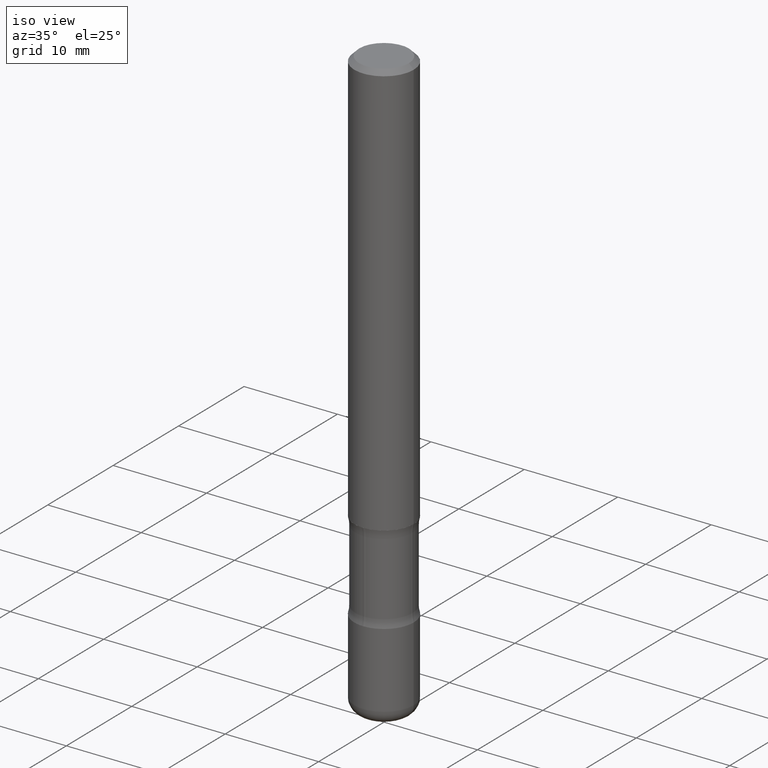
[diagram: clean part render]
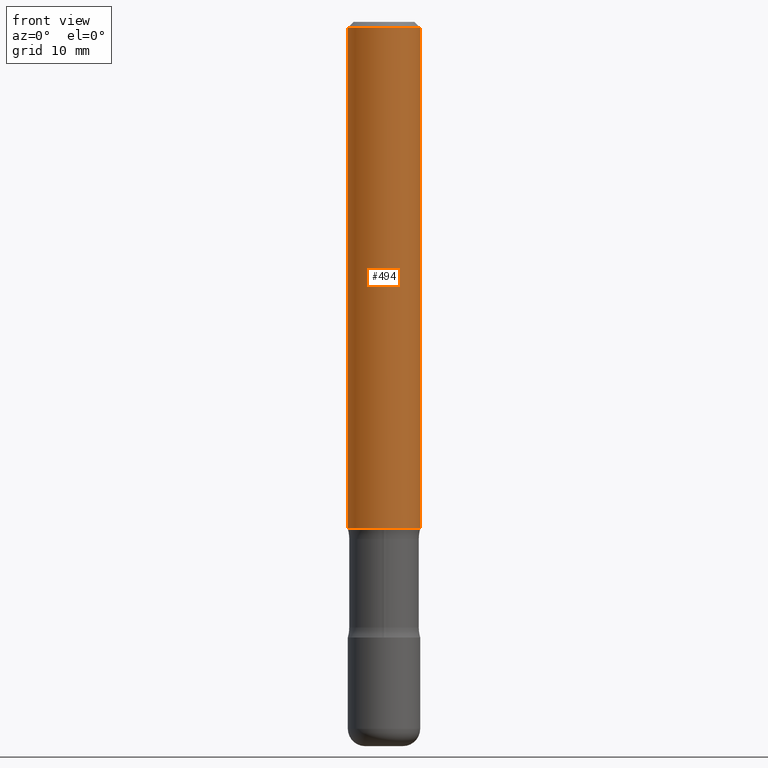
[diagram: tour spotlight — one face highlighted and labeled with its STEP entity id]
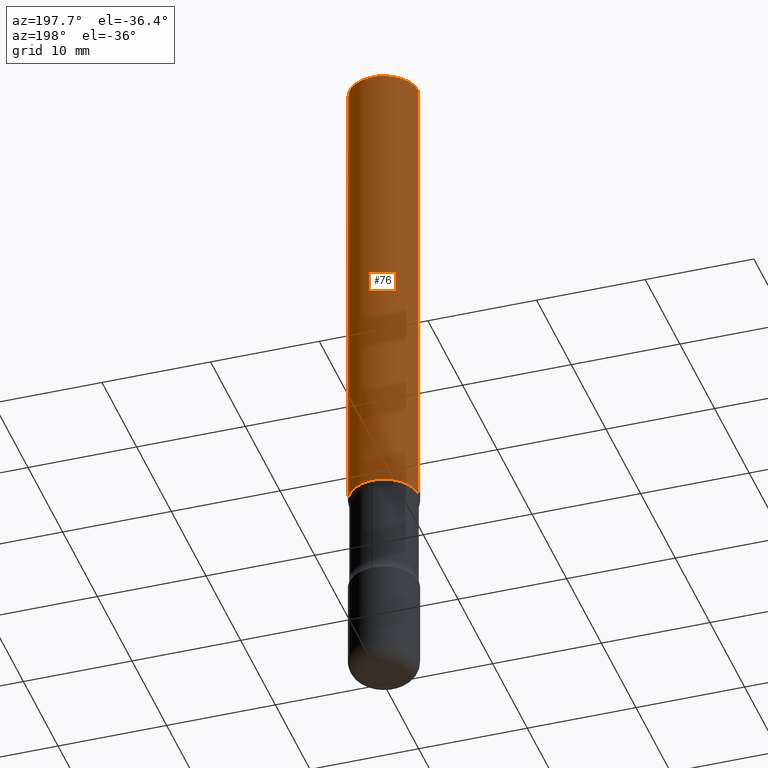
[diagram: tour spotlight — one face highlighted and labeled with its STEP entity id]
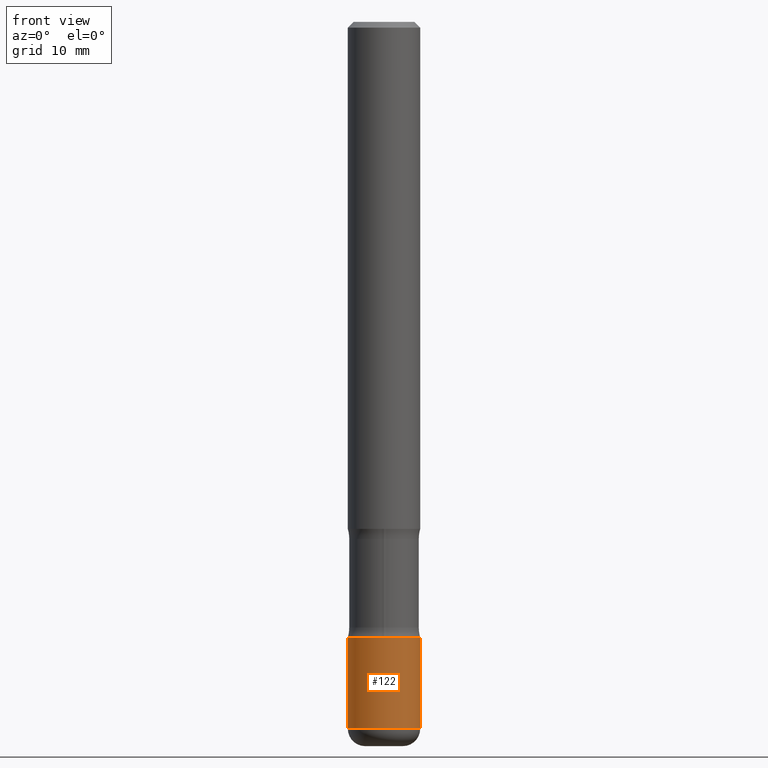
[diagram: tour spotlight — one face highlighted and labeled with its STEP entity id]
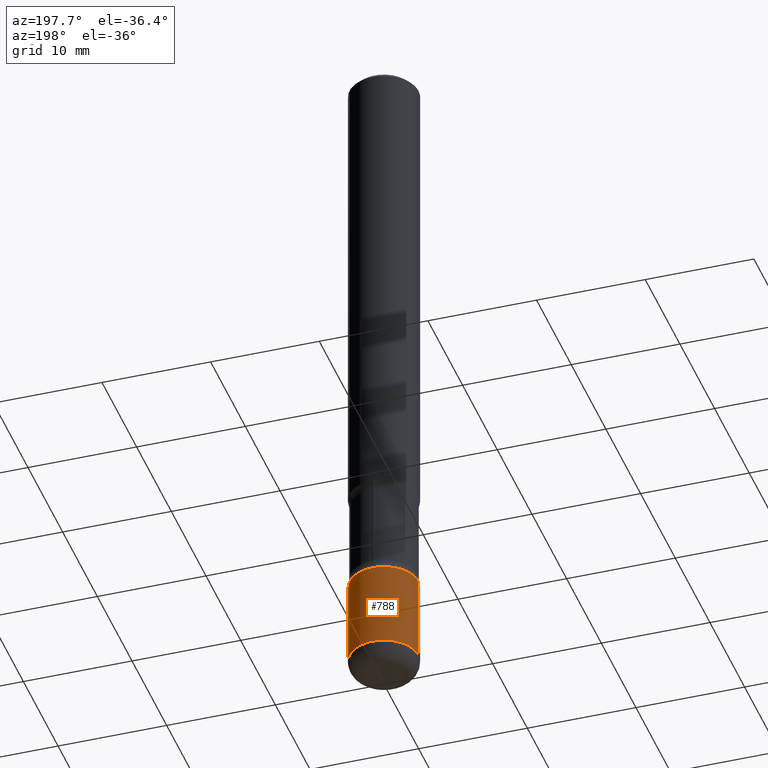
[diagram: tour spotlight — one face highlighted and labeled with its STEP entity id]
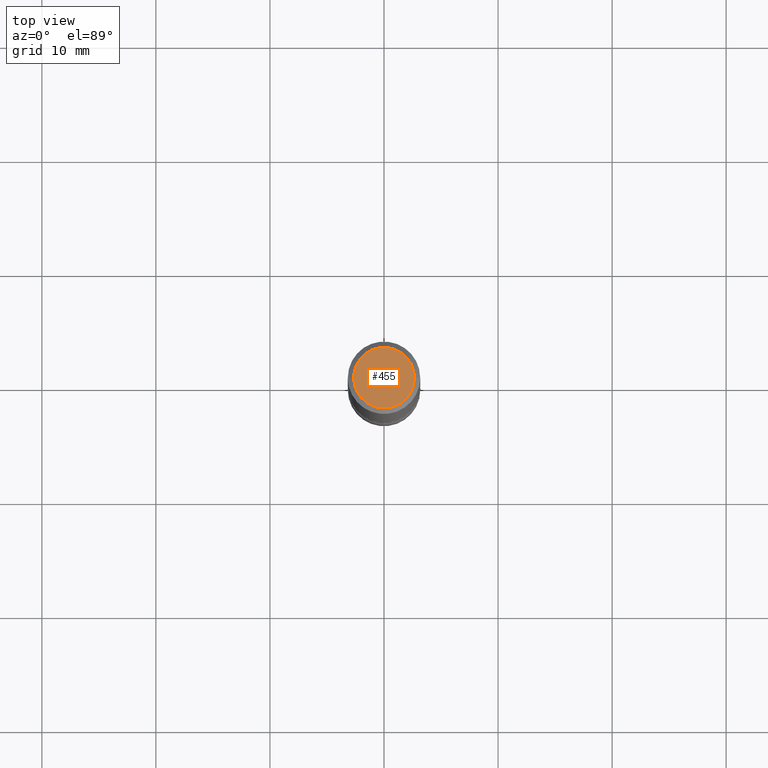
[diagram: tour spotlight — one face highlighted and labeled with its STEP entity id]
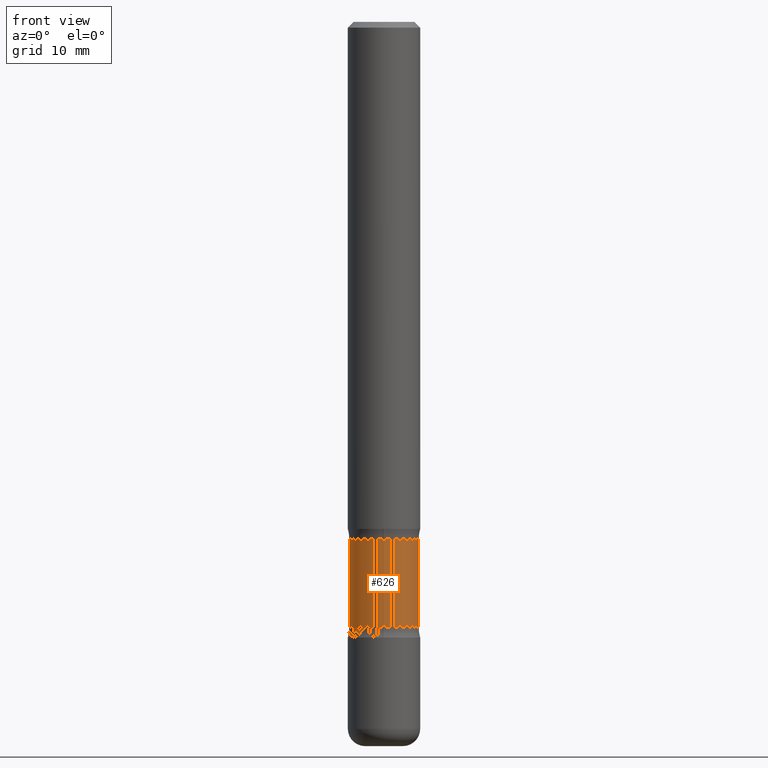
[diagram: tour spotlight — one face highlighted and labeled with its STEP entity id]
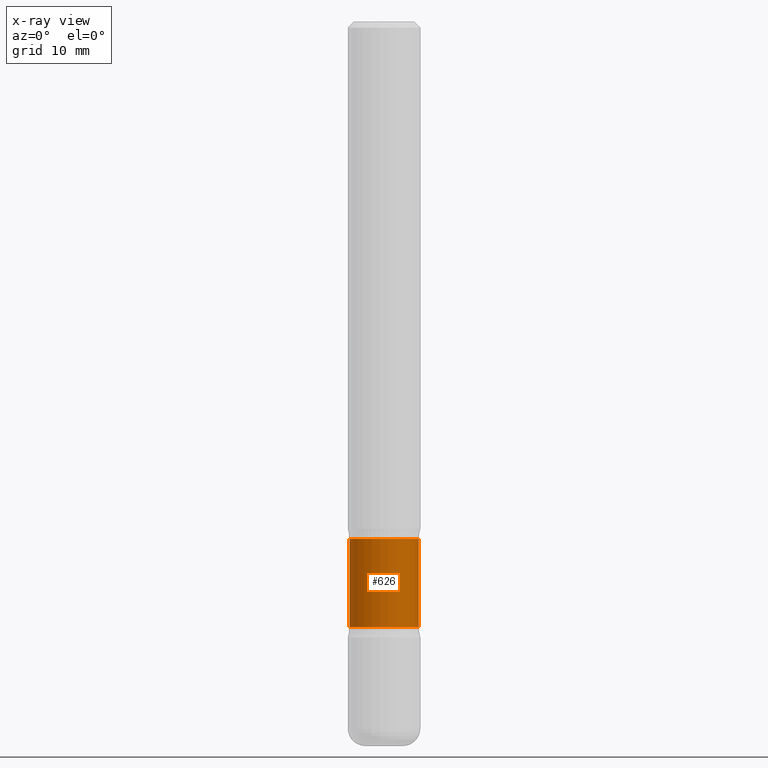
[diagram: x-ray of the same camera — body ghosted, this tour face saturated]
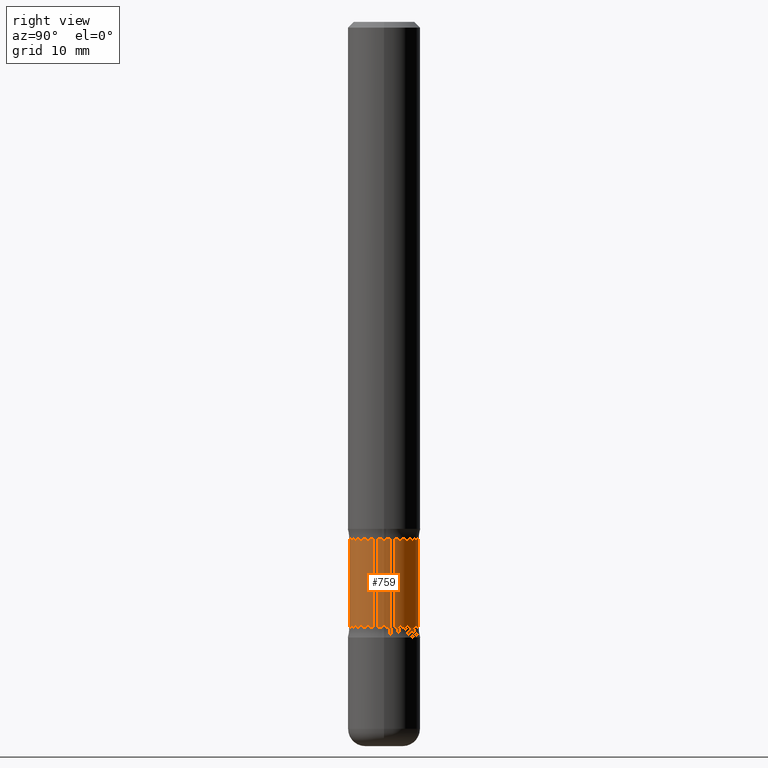
[diagram: tour spotlight — one face highlighted and labeled with its STEP entity id]
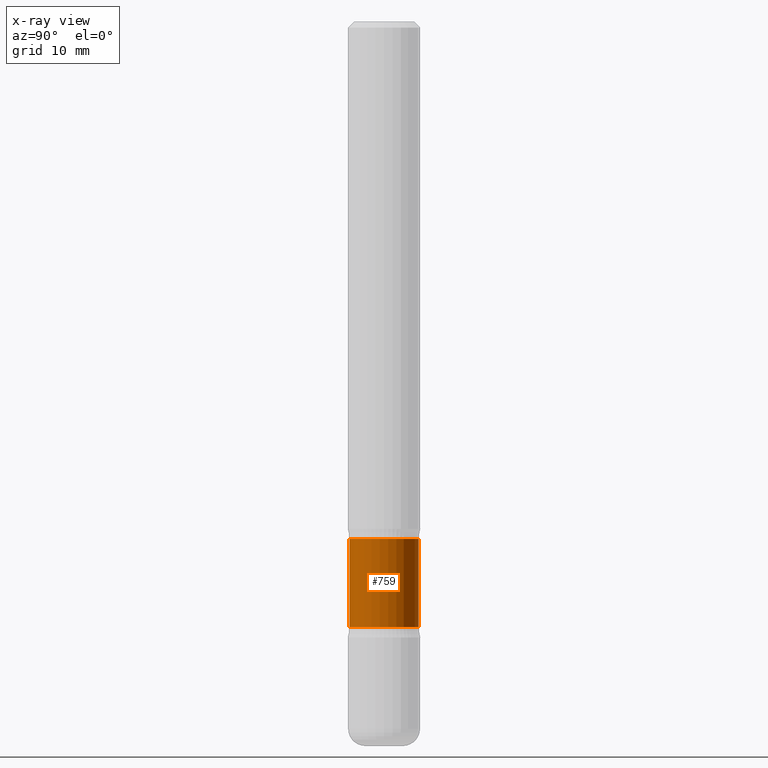
[diagram: x-ray of the same camera — body ghosted, this tour face saturated]
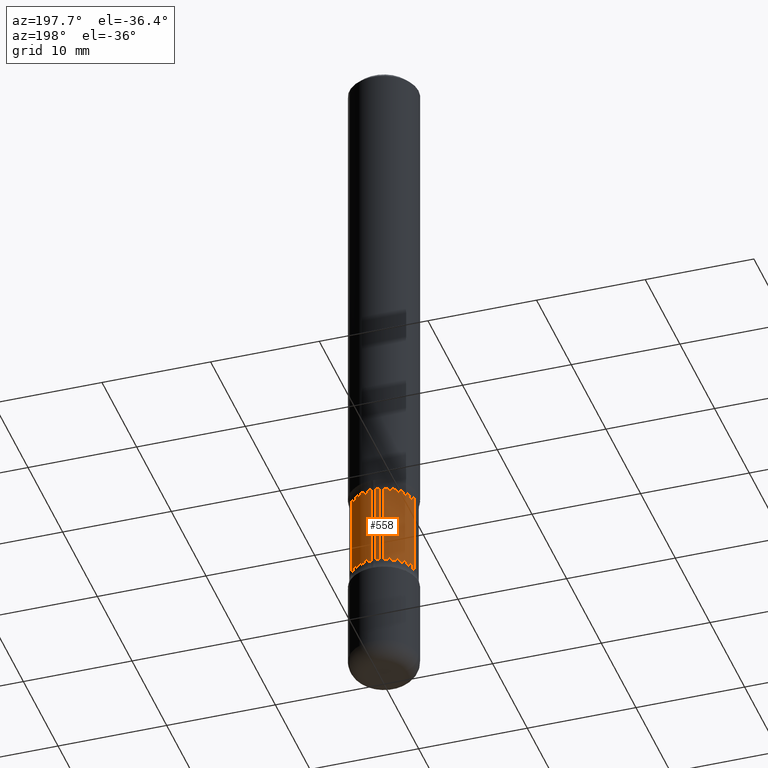
[diagram: tour spotlight — one face highlighted and labeled with its STEP entity id]
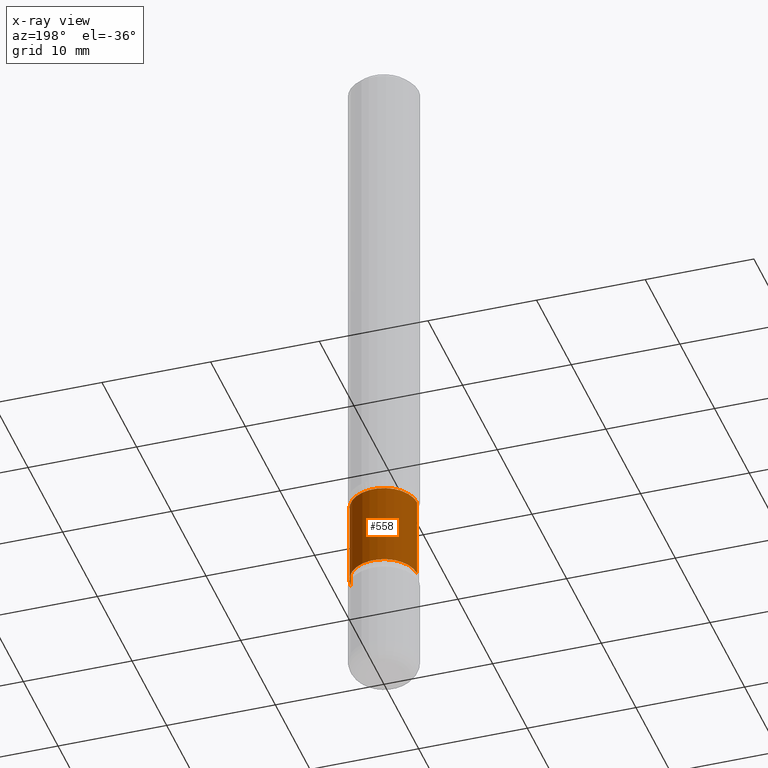
[diagram: x-ray of the same camera — body ghosted, this tour face saturated]
A machine part: a face-by-face anatomy tour. The part has 30 B-rep faces; the first image is the clean iso view, then the 8 largest visible faces are spotlighted one at a time (largest first), each with its STEP entity span.

Face 1 — front view, entity #494. In plain terms, the highlighted cylindrical surface (edge-blend (fillet) strip) has radius 3.175 mm, axis along (-0, 0, 1).
Definition (entity closure, byte-faithful):
#40 = VECTOR ( 'NONE', #767, 39.37007874015748143 ) ;
#42 = DIRECTION ( 'NONE',  ( -2.445468806185136597E-29, 3.491481338843145583E-15, 1.000000000000000000 ) ) ;
#64 = VERTEX_POINT ( 'NONE', #574 ) ;
#85 = CARTESIAN_POINT ( 'NONE',  ( -0.1249999999999999029, 8.881784197001245421E-16, -6.148668862818627323E-30 ) ) ;
#94 = DIRECTION ( 'NONE',  ( -2.445468806185136597E-29, 3.491481338843145583E-15, 1.000000000000000000 ) ) ;
#110 = VERTEX_POINT ( 'NONE', #396 ) ;
#148 = LINE ( 'NONE', #85, #40 ) ;
#157 = VERTEX_POINT ( 'NONE', #467 ) ;
#203 = FACE_OUTER_BOUND ( 'NONE', #617, .T. ) ;
#241 = EDGE_CURVE ( 'NONE', #512, #157, #711, .T. ) ;
#274 = DIRECTION ( 'NONE',  ( 1.000000000000000000, -6.982962677686266711E-15, 4.876176775795935793E-29 ) ) ;
#285 = ORIENTED_EDGE ( 'NONE', *, *, #644, .F. ) ;
#296 = CIRCLE ( 'NONE', #407, 0.1249999999999997780 ) ;
#323 = VECTOR ( 'NONE', #453, 39.37007874015748143 ) ;
#343 = CARTESIAN_POINT ( 'NONE',  ( 0.000000000000000000, 0.000000000000000000, 0.000000000000000000 ) ) ;
#368 = AXIS2_PLACEMENT_3D ( 'NONE', #658, #42, #729 ) ;
#396 = CARTESIAN_POINT ( 'NONE',  ( 0.1249999999999997780, -9.273918764983029686E-16, -0.02000000000000004552 ) ) ;
#407 = AXIS2_PLACEMENT_3D ( 'NONE', #665, #534, #588 ) ;
#453 = DIRECTION ( 'NONE',  ( -2.445468806185136877E-29, 3.491481338843145188E-15, 1.000000000000000000 ) ) ;
#456 = CARTESIAN_POINT ( 'NONE',  ( -0.1250000000000000278, -2.201782565176055991E-15, -1.750000000000000000 ) ) ;
#464 = LINE ( 'NONE', #645, #323 ) ;
#467 = CARTESIAN_POINT ( 'NONE',  ( 0.1250000000000000000, -6.982962677686288010E-15, -1.750000000000000000 ) ) ;
#494 = ADVANCED_FACE ( 'NONE', ( #203 ), #701, .T. ) ;
#512 = VERTEX_POINT ( 'NONE', #456 ) ;
#534 = DIRECTION ( 'NONE',  ( -2.445468806185136597E-29, 3.491481338843145583E-15, 1.000000000000000000 ) ) ;
#541 = ORIENTED_EDGE ( 'NONE', *, *, #581, .T. ) ;
#553 = AXIS2_PLACEMENT_3D ( 'NONE', #343, #94, #274 ) ;
#574 = CARTESIAN_POINT ( 'NONE',  ( -0.1249999999999997780, 8.030407079339186601E-16, -0.02000000000000004552 ) ) ;
#581 = EDGE_CURVE ( 'NONE', #157, #110, #464, .T. ) ;
#588 = DIRECTION ( 'NONE',  ( 1.000000000000000000, -6.982962677686266711E-15, 0.000000000000000000 ) ) ;
#611 = EDGE_CURVE ( 'NONE', #512, #64, #148, .T. ) ;
#613 = ORIENTED_EDGE ( 'NONE', *, *, #611, .F. ) ;
#617 = EDGE_LOOP ( 'NONE', ( #613, #758, #541, #285 ) ) ;
#644 = EDGE_CURVE ( 'NONE', #64, #110, #296, .T. ) ;
#645 = CARTESIAN_POINT ( 'NONE',  ( 0.1249999999999999029, -8.728703347107826486E-16, 6.095220969744914837E-30 ) ) ;
#658 = CARTESIAN_POINT ( 'NONE',  ( 4.279570410823988484E-29, -6.110092342975504671E-15, -1.750000000000000000 ) ) ;
#665 = CARTESIAN_POINT ( 'NONE',  ( 4.890937612370284544E-31, -6.982962677686307633E-17, -0.02000000000000004552 ) ) ;
#701 = CYLINDRICAL_SURFACE ( 'NONE', #553, 0.1249999999999999029 ) ;
#711 = CIRCLE ( 'NONE', #368, 0.1250000000000000000 ) ;
#729 = DIRECTION ( 'NONE',  ( 1.000000000000000000, -6.982962677686270655E-15, 0.000000000000000000 ) ) ;
#758 = ORIENTED_EDGE ( 'NONE', *, *, #241, .T. ) ;
#767 = DIRECTION ( 'NONE',  ( -2.445468806185136877E-29, 3.491481338843145188E-15, 1.000000000000000000 ) ) ;

Face 2 — auxiliary view, entity #76. In plain terms, the highlighted cylindrical surface (edge-blend (fillet) strip) has radius 3.175 mm, axis along (-0, 0, 1).
Definition (entity closure, byte-faithful):
#36 = DIRECTION ( 'NONE',  ( 1.000000000000000000, -6.982962677686266711E-15, 4.876176775795935793E-29 ) ) ;
#40 = VECTOR ( 'NONE', #767, 39.37007874015748143 ) ;
#64 = VERTEX_POINT ( 'NONE', #574 ) ;
#76 = ADVANCED_FACE ( 'NONE', ( #457 ), #265, .T. ) ;
#85 = CARTESIAN_POINT ( 'NONE',  ( -0.1249999999999999029, 8.881784197001245421E-16, -6.148668862818627323E-30 ) ) ;
#86 = DIRECTION ( 'NONE',  ( -2.445468806185136597E-29, 3.491481338843145583E-15, 1.000000000000000000 ) ) ;
#102 = EDGE_CURVE ( 'NONE', #110, #64, #525, .T. ) ;
#103 = DIRECTION ( 'NONE',  ( -2.445468806185136597E-29, 3.491481338843145583E-15, 1.000000000000000000 ) ) ;
#110 = VERTEX_POINT ( 'NONE', #396 ) ;
#148 = LINE ( 'NONE', #85, #40 ) ;
#157 = VERTEX_POINT ( 'NONE', #467 ) ;
#209 = CIRCLE ( 'NONE', #679, 0.1250000000000000000 ) ;
#234 = DIRECTION ( 'NONE',  ( 1.000000000000000000, -6.982962677686270655E-15, 0.000000000000000000 ) ) ;
#240 = ORIENTED_EDGE ( 'NONE', *, *, #102, .F. ) ;
#265 = CYLINDRICAL_SURFACE ( 'NONE', #635, 0.1249999999999999029 ) ;
#275 = CARTESIAN_POINT ( 'NONE',  ( 0.000000000000000000, 0.000000000000000000, 0.000000000000000000 ) ) ;
#282 = CARTESIAN_POINT ( 'NONE',  ( 4.890937612370284544E-31, -6.982962677686307633E-17, -0.02000000000000004552 ) ) ;
#323 = VECTOR ( 'NONE', #453, 39.37007874015748143 ) ;
#332 = ORIENTED_EDGE ( 'NONE', *, *, #581, .F. ) ;
#396 = CARTESIAN_POINT ( 'NONE',  ( 0.1249999999999997780, -9.273918764983029686E-16, -0.02000000000000004552 ) ) ;
#398 = DIRECTION ( 'NONE',  ( -2.445468806185136597E-29, 3.491481338843145583E-15, 1.000000000000000000 ) ) ;
#412 = ORIENTED_EDGE ( 'NONE', *, *, #752, .T. ) ;
#453 = DIRECTION ( 'NONE',  ( -2.445468806185136877E-29, 3.491481338843145188E-15, 1.000000000000000000 ) ) ;
#456 = CARTESIAN_POINT ( 'NONE',  ( -0.1250000000000000278, -2.201782565176055991E-15, -1.750000000000000000 ) ) ;
#457 = FACE_OUTER_BOUND ( 'NONE', #552, .T. ) ;
#464 = LINE ( 'NONE', #645, #323 ) ;
#467 = CARTESIAN_POINT ( 'NONE',  ( 0.1250000000000000000, -6.982962677686288010E-15, -1.750000000000000000 ) ) ;
#470 = CARTESIAN_POINT ( 'NONE',  ( 4.279570410823988484E-29, -6.110092342975504671E-15, -1.750000000000000000 ) ) ;
#512 = VERTEX_POINT ( 'NONE', #456 ) ;
#525 = CIRCLE ( 'NONE', #620, 0.1249999999999997780 ) ;
#529 = DIRECTION ( 'NONE',  ( 1.000000000000000000, -6.982962677686266711E-15, 0.000000000000000000 ) ) ;
#552 = EDGE_LOOP ( 'NONE', ( #412, #746, #240, #332 ) ) ;
#574 = CARTESIAN_POINT ( 'NONE',  ( -0.1249999999999997780, 8.030407079339186601E-16, -0.02000000000000004552 ) ) ;
#581 = EDGE_CURVE ( 'NONE', #157, #110, #464, .T. ) ;
#611 = EDGE_CURVE ( 'NONE', #512, #64, #148, .T. ) ;
#620 = AXIS2_PLACEMENT_3D ( 'NONE', #282, #398, #529 ) ;
#635 = AXIS2_PLACEMENT_3D ( 'NONE', #275, #86, #36 ) ;
#645 = CARTESIAN_POINT ( 'NONE',  ( 0.1249999999999999029, -8.728703347107826486E-16, 6.095220969744914837E-30 ) ) ;
#679 = AXIS2_PLACEMENT_3D ( 'NONE', #470, #103, #234 ) ;
#746 = ORIENTED_EDGE ( 'NONE', *, *, #611, .T. ) ;
#752 = EDGE_CURVE ( 'NONE', #157, #512, #209, .T. ) ;
#767 = DIRECTION ( 'NONE',  ( -2.445468806185136877E-29, 3.491481338843145188E-15, 1.000000000000000000 ) ) ;

Face 3 — front view, entity #122. In plain terms, the highlighted cylindrical surface (edge-blend (fillet) strip) has radius 3.175 mm, axis along (-0, 0, 1).
Definition (entity closure, byte-faithful):
#3 = DIRECTION ( 'NONE',  ( -2.445468806185136877E-29, 3.491481338843145188E-15, 1.000000000000000000 ) ) ;
#25 = CARTESIAN_POINT ( 'NONE',  ( 5.196621213143415268E-29, -7.419397845041685201E-15, -2.125000000000000000 ) ) ;
#32 = DIRECTION ( 'NONE',  ( -2.445468806185136597E-29, 3.491481338843145583E-15, 1.000000000000000000 ) ) ;
#49 = ORIENTED_EDGE ( 'NONE', *, *, #440, .T. ) ;
#100 = EDGE_LOOP ( 'NONE', ( #150, #185, #49, #427 ) ) ;
#122 = ADVANCED_FACE ( 'NONE', ( #639 ), #204, .T. ) ;
#123 = VERTEX_POINT ( 'NONE', #642 ) ;
#132 = VECTOR ( 'NONE', #226, 39.37007874015748143 ) ;
#150 = ORIENTED_EDGE ( 'NONE', *, *, #301, .F. ) ;
#178 = LINE ( 'NONE', #372, #132 ) ;
#185 = ORIENTED_EDGE ( 'NONE', *, *, #197, .T. ) ;
#197 = EDGE_CURVE ( 'NONE', #441, #123, #232, .T. ) ;
#204 = CYLINDRICAL_SURFACE ( 'NONE', #283, 0.1250000000000000000 ) ;
#215 = DIRECTION ( 'NONE',  ( 1.000000000000000000, -6.982962677686263555E-15, 0.000000000000000000 ) ) ;
#226 = DIRECTION ( 'NONE',  ( -2.445468806185136877E-29, 3.491481338843145188E-15, 1.000000000000000000 ) ) ;
#231 = VERTEX_POINT ( 'NONE', #675 ) ;
#232 = CIRCLE ( 'NONE', #392, 0.1250000000000000000 ) ;
#233 = CIRCLE ( 'NONE', #445, 0.1249999999999999861 ) ;
#235 = CARTESIAN_POINT ( 'NONE',  ( 5.966943887091733341E-29, -8.519214466777275048E-15, -2.440000000000000391 ) ) ;
#283 = AXIS2_PLACEMENT_3D ( 'NONE', #451, #705, #462 ) ;
#301 = EDGE_CURVE ( 'NONE', #441, #231, #178, .T. ) ;
#306 = CARTESIAN_POINT ( 'NONE',  ( 0.1250000000000000000, -8.728703347107833388E-16, 6.095220969744919741E-30 ) ) ;
#339 = VECTOR ( 'NONE', #3, 39.37007874015748143 ) ;
#372 = CARTESIAN_POINT ( 'NONE',  ( -0.1250000000000000000, 8.881784197001252323E-16, -6.148668862818632227E-30 ) ) ;
#392 = AXIS2_PLACEMENT_3D ( 'NONE', #235, #721, #802 ) ;
#427 = ORIENTED_EDGE ( 'NONE', *, *, #499, .F. ) ;
#440 = EDGE_CURVE ( 'NONE', #123, #706, #616, .T. ) ;
#441 = VERTEX_POINT ( 'NONE', #745 ) ;
#445 = AXIS2_PLACEMENT_3D ( 'NONE', #25, #32, #215 ) ;
#451 = CARTESIAN_POINT ( 'NONE',  ( 0.000000000000000000, 0.000000000000000000, 0.000000000000000000 ) ) ;
#462 = DIRECTION ( 'NONE',  ( 1.000000000000000000, -6.982962677686266711E-15, 4.876176775795935793E-29 ) ) ;
#499 = EDGE_CURVE ( 'NONE', #231, #706, #233, .T. ) ;
#526 = CARTESIAN_POINT ( 'NONE',  ( 0.1249999999999999861, -8.292268179752466962E-15, -2.125000000000000000 ) ) ;
#616 = LINE ( 'NONE', #306, #339 ) ;
#639 = FACE_OUTER_BOUND ( 'NONE', #100, .T. ) ;
#642 = CARTESIAN_POINT ( 'NONE',  ( 0.1249999999999998473, -9.392084801488056809E-15, -2.440000000000000391 ) ) ;
#675 = CARTESIAN_POINT ( 'NONE',  ( -0.1249999999999999861, -7.081127736209354103E-15, -2.125000000000000000 ) ) ;
#705 = DIRECTION ( 'NONE',  ( -2.445468806185136597E-29, 3.491481338843145583E-15, 1.000000000000000000 ) ) ;
#706 = VERTEX_POINT ( 'NONE', #526 ) ;
#721 = DIRECTION ( 'NONE',  ( -2.445468806185136597E-29, 3.491481338843145583E-15, 1.000000000000000000 ) ) ;
#745 = CARTESIAN_POINT ( 'NONE',  ( -0.1249999999999998473, -7.631036047077151393E-15, -2.440000000000000391 ) ) ;
#802 = DIRECTION ( 'NONE',  ( 1.000000000000000000, -6.982962677686262766E-15, 0.000000000000000000 ) ) ;

Face 4 — auxiliary view, entity #788. In plain terms, the highlighted cylindrical surface (edge-blend (fillet) strip) has radius 3.175 mm, axis along (-0, 0, 1).
Definition (entity closure, byte-faithful):
#3 = DIRECTION ( 'NONE',  ( -2.445468806185136877E-29, 3.491481338843145188E-15, 1.000000000000000000 ) ) ;
#6 = EDGE_CURVE ( 'NONE', #706, #231, #749, .T. ) ;
#10 = DIRECTION ( 'NONE',  ( 1.000000000000000000, -6.982962677686262766E-15, 0.000000000000000000 ) ) ;
#53 = ORIENTED_EDGE ( 'NONE', *, *, #6, .F. ) ;
#60 = CARTESIAN_POINT ( 'NONE',  ( 0.000000000000000000, 0.000000000000000000, 0.000000000000000000 ) ) ;
#123 = VERTEX_POINT ( 'NONE', #642 ) ;
#132 = VECTOR ( 'NONE', #226, 39.37007874015748143 ) ;
#169 = AXIS2_PLACEMENT_3D ( 'NONE', #259, #201, #695 ) ;
#178 = LINE ( 'NONE', #372, #132 ) ;
#187 = CARTESIAN_POINT ( 'NONE',  ( 5.966943887091733341E-29, -8.519214466777275048E-15, -2.440000000000000391 ) ) ;
#193 = CYLINDRICAL_SURFACE ( 'NONE', #370, 0.1250000000000000000 ) ;
#194 = AXIS2_PLACEMENT_3D ( 'NONE', #187, #316, #10 ) ;
#201 = DIRECTION ( 'NONE',  ( -2.445468806185136597E-29, 3.491481338843145583E-15, 1.000000000000000000 ) ) ;
#226 = DIRECTION ( 'NONE',  ( -2.445468806185136877E-29, 3.491481338843145188E-15, 1.000000000000000000 ) ) ;
#231 = VERTEX_POINT ( 'NONE', #675 ) ;
#259 = CARTESIAN_POINT ( 'NONE',  ( 5.196621213143415268E-29, -7.419397845041685201E-15, -2.125000000000000000 ) ) ;
#301 = EDGE_CURVE ( 'NONE', #441, #231, #178, .T. ) ;
#302 = EDGE_LOOP ( 'NONE', ( #630, #643, #53, #498 ) ) ;
#306 = CARTESIAN_POINT ( 'NONE',  ( 0.1250000000000000000, -8.728703347107833388E-16, 6.095220969744919741E-30 ) ) ;
#316 = DIRECTION ( 'NONE',  ( -2.445468806185136597E-29, 3.491481338843145583E-15, 1.000000000000000000 ) ) ;
#336 = EDGE_CURVE ( 'NONE', #123, #441, #539, .T. ) ;
#339 = VECTOR ( 'NONE', #3, 39.37007874015748143 ) ;
#370 = AXIS2_PLACEMENT_3D ( 'NONE', #60, #753, #371 ) ;
#371 = DIRECTION ( 'NONE',  ( 1.000000000000000000, -6.982962677686266711E-15, 4.876176775795935793E-29 ) ) ;
#372 = CARTESIAN_POINT ( 'NONE',  ( -0.1250000000000000000, 8.881784197001252323E-16, -6.148668862818632227E-30 ) ) ;
#440 = EDGE_CURVE ( 'NONE', #123, #706, #616, .T. ) ;
#441 = VERTEX_POINT ( 'NONE', #745 ) ;
#498 = ORIENTED_EDGE ( 'NONE', *, *, #440, .F. ) ;
#526 = CARTESIAN_POINT ( 'NONE',  ( 0.1249999999999999861, -8.292268179752466962E-15, -2.125000000000000000 ) ) ;
#539 = CIRCLE ( 'NONE', #194, 0.1250000000000000000 ) ;
#555 = FACE_OUTER_BOUND ( 'NONE', #302, .T. ) ;
#616 = LINE ( 'NONE', #306, #339 ) ;
#630 = ORIENTED_EDGE ( 'NONE', *, *, #336, .T. ) ;
#642 = CARTESIAN_POINT ( 'NONE',  ( 0.1249999999999998473, -9.392084801488056809E-15, -2.440000000000000391 ) ) ;
#643 = ORIENTED_EDGE ( 'NONE', *, *, #301, .T. ) ;
#675 = CARTESIAN_POINT ( 'NONE',  ( -0.1249999999999999861, -7.081127736209354103E-15, -2.125000000000000000 ) ) ;
#695 = DIRECTION ( 'NONE',  ( 1.000000000000000000, -6.982962677686263555E-15, 0.000000000000000000 ) ) ;
#706 = VERTEX_POINT ( 'NONE', #526 ) ;
#745 = CARTESIAN_POINT ( 'NONE',  ( -0.1249999999999998473, -7.631036047077151393E-15, -2.440000000000000391 ) ) ;
#749 = CIRCLE ( 'NONE', #169, 0.1249999999999999861 ) ;
#753 = DIRECTION ( 'NONE',  ( -2.445468806185136597E-29, 3.491481338843145583E-15, 1.000000000000000000 ) ) ;
#788 = ADVANCED_FACE ( 'NONE', ( #555 ), #193, .T. ) ;

Face 5 — top view, entity #455. In plain terms, the highlighted planar face has unit normal (0, -0, -1).
Definition (entity closure, byte-faithful):
#27 = AXIS2_PLACEMENT_3D ( 'NONE', #116, #599, #605 ) ;
#89 = CARTESIAN_POINT ( 'NONE',  ( -0.1049999999999997741, 7.681258945454874055E-16, -1.707404996040689597E-17 ) ) ;
#116 = CARTESIAN_POINT ( 'NONE',  ( 4.175405657340879278E-46, -5.961372681521788801E-32, -1.707404996040164512E-17 ) ) ;
#126 = VERTEX_POINT ( 'NONE', #89 ) ;
#139 = VERTEX_POINT ( 'NONE', #646 ) ;
#179 = ORIENTED_EDGE ( 'NONE', *, *, #260, .T. ) ;
#196 = AXIS2_PLACEMENT_3D ( 'NONE', #461, #641, #569 ) ;
#243 = FACE_OUTER_BOUND ( 'NONE', #363, .T. ) ;
#260 = EDGE_CURVE ( 'NONE', #139, #126, #444, .T. ) ;
#354 = ORIENTED_EDGE ( 'NONE', *, *, #597, .T. ) ;
#363 = EDGE_LOOP ( 'NONE', ( #354, #179 ) ) ;
#383 = DIRECTION ( 'NONE',  ( -1.000000000000000000, 6.982962677686265922E-15, -4.876176775795935793E-29 ) ) ;
#439 = DIRECTION ( 'NONE',  ( 2.438088387897960049E-29, -3.491481338843145188E-15, -1.000000000000000000 ) ) ;
#444 = CIRCLE ( 'NONE', #27, 0.1049999999999997741 ) ;
#455 = ADVANCED_FACE ( 'NONE', ( #243 ), #735, .F. ) ;
#461 = CARTESIAN_POINT ( 'NONE',  ( 4.175405657340879278E-46, -5.961372681521788801E-32, -1.707404996040164512E-17 ) ) ;
#569 = DIRECTION ( 'NONE',  ( 1.000000000000000000, -6.982962677686265922E-15, 4.876206205277404679E-29 ) ) ;
#597 = EDGE_CURVE ( 'NONE', #126, #139, #779, .T. ) ;
#599 = DIRECTION ( 'NONE',  ( -2.445468806185136597E-29, 3.491481338843145583E-15, 1.000000000000000000 ) ) ;
#605 = DIRECTION ( 'NONE',  ( 1.000000000000000000, -6.982962677686265922E-15, 4.876206205277404679E-29 ) ) ;
#641 = DIRECTION ( 'NONE',  ( -2.445468806185136597E-29, 3.491481338843145583E-15, 1.000000000000000000 ) ) ;
#646 = CARTESIAN_POINT ( 'NONE',  ( 0.1049999999999997741, -8.238720831321562839E-16, -1.707404996039620013E-17 ) ) ;
#677 = AXIS2_PLACEMENT_3D ( 'NONE', #741, #439, #383 ) ;
#735 = PLANE ( 'NONE',  #677 ) ;
#741 = CARTESIAN_POINT ( 'NONE',  ( 7.332110811570563480E-16, 0.1049999999999997741, -3.751425655587303093E-16 ) ) ;
#779 = CIRCLE ( 'NONE', #196, 0.1049999999999997741 ) ;

Face 6 — front view, entity #626. An x-ray twin of the same camera follows (body ghosted, this face saturated) — the face is partly hidden behind the body. In plain terms, the highlighted cylindrical surface (edge-blend (fillet) strip) has radius 3.048 mm, axis along (-0, 0, 1).
Definition (entity closure, byte-faithful):
#14 = VERTEX_POINT ( 'NONE', #411 ) ;
#44 = EDGE_LOOP ( 'NONE', ( #608, #603, #480, #314 ) ) ;
#73 = VERTEX_POINT ( 'NONE', #161 ) ;
#78 = AXIS2_PLACEMENT_3D ( 'NONE', #210, #264, #205 ) ;
#99 = EDGE_CURVE ( 'NONE', #342, #73, #106, .T. ) ;
#104 = LINE ( 'NONE', #163, #352 ) ;
#106 = CIRCLE ( 'NONE', #479, 0.1199999999999998013 ) ;
#130 = EDGE_CURVE ( 'NONE', #722, #73, #153, .T. ) ;
#149 = DIRECTION ( 'NONE',  ( 1.000000000000000000, -6.982962677686263555E-15, 0.000000000000000000 ) ) ;
#153 = LINE ( 'NONE', #156, #256 ) ;
#155 = CYLINDRICAL_SURFACE ( 'NONE', #369, 0.1199999999999998151 ) ;
#156 = CARTESIAN_POINT ( 'NONE',  ( 0.1199999999999998151, -6.948047864297855572E-15, -1.750000000000000000 ) ) ;
#161 = CARTESIAN_POINT ( 'NONE',  ( 0.1199999999999998013, -7.070249711157367921E-15, -1.785000000000000808 ) ) ;
#163 = CARTESIAN_POINT ( 'NONE',  ( -0.1199999999999998151, -5.257441060063385268E-15, -1.750000000000000000 ) ) ;
#171 = CARTESIAN_POINT ( 'NONE',  ( 4.279570410823988484E-29, -6.110092342975504671E-15, -1.750000000000000000 ) ) ;
#205 = DIRECTION ( 'NONE',  ( 1.000000000000000000, -6.982962677686269077E-15, 0.000000000000000000 ) ) ;
#210 = CARTESIAN_POINT ( 'NONE',  ( 5.111029804926934859E-29, -7.297195998182173641E-15, -2.089999999999999858 ) ) ;
#216 = EDGE_CURVE ( 'NONE', #14, #342, #104, .T. ) ;
#238 = DIRECTION ( 'NONE',  ( -2.445468806185136597E-29, 3.491481338843145583E-15, 1.000000000000000000 ) ) ;
#256 = VECTOR ( 'NONE', #401, 39.37007874015748143 ) ;
#264 = DIRECTION ( 'NONE',  ( -2.445468806185136597E-29, 3.491481338843145583E-15, 1.000000000000000000 ) ) ;
#292 = DIRECTION ( 'NONE',  ( -2.445468806185136877E-29, 3.491481338843145188E-15, 1.000000000000000000 ) ) ;
#314 = ORIENTED_EDGE ( 'NONE', *, *, #99, .F. ) ;
#342 = VERTEX_POINT ( 'NONE', #495 ) ;
#352 = VECTOR ( 'NONE', #292, 39.37007874015748143 ) ;
#369 = AXIS2_PLACEMENT_3D ( 'NONE', #171, #238, #731 ) ;
#401 = DIRECTION ( 'NONE',  ( -2.445468806185136877E-29, 3.491481338843145188E-15, 1.000000000000000000 ) ) ;
#411 = CARTESIAN_POINT ( 'NONE',  ( -0.1199999999999998429, -6.487882070305807892E-15, -2.089999999999999858 ) ) ;
#415 = CARTESIAN_POINT ( 'NONE',  ( 0.1199999999999998429, -8.135151519504525330E-15, -2.089999999999999858 ) ) ;
#479 = AXIS2_PLACEMENT_3D ( 'NONE', #653, #511, #149 ) ;
#480 = ORIENTED_EDGE ( 'NONE', *, *, #130, .T. ) ;
#495 = CARTESIAN_POINT ( 'NONE',  ( -0.1199999999999998013, -5.300778415099138923E-15, -1.785000000000000808 ) ) ;
#511 = DIRECTION ( 'NONE',  ( -2.445468806185136597E-29, 3.491481338843145583E-15, 1.000000000000000000 ) ) ;
#571 = EDGE_CURVE ( 'NONE', #14, #722, #712, .T. ) ;
#603 = ORIENTED_EDGE ( 'NONE', *, *, #571, .T. ) ;
#608 = ORIENTED_EDGE ( 'NONE', *, *, #216, .F. ) ;
#626 = ADVANCED_FACE ( 'NONE', ( #708 ), #155, .T. ) ;
#653 = CARTESIAN_POINT ( 'NONE',  ( 4.365161819040470574E-29, -6.232294189835017809E-15, -1.785000000000000808 ) ) ;
#708 = FACE_OUTER_BOUND ( 'NONE', #44, .T. ) ;
#712 = CIRCLE ( 'NONE', #78, 0.1199999999999998429 ) ;
#722 = VERTEX_POINT ( 'NONE', #415 ) ;
#731 = DIRECTION ( 'NONE',  ( 1.000000000000000000, -6.982962677686270655E-15, 0.000000000000000000 ) ) ;

Face 7 — right view, entity #759. An x-ray twin of the same camera follows (body ghosted, this face saturated) — the face is partly hidden behind the body. In plain terms, the highlighted cylindrical surface (edge-blend (fillet) strip) has radius 3.048 mm, axis along (0, -0, -1).
Definition (entity closure, byte-faithful):
#12 = EDGE_CURVE ( 'NONE', #547, #70, #141, .T. ) ;
#31 = DIRECTION ( 'NONE',  ( 2.451633719983710684E-29, -3.482652831398484905E-15, -1.000000000000000000 ) ) ;
#41 = CARTESIAN_POINT ( 'NONE',  ( 6.111489178996587108E-29, -8.719007768687004191E-15, -2.498166659601683826 ) ) ;
#70 = VERTEX_POINT ( 'NONE', #577 ) ;
#114 = EDGE_CURVE ( 'NONE', #287, #547, #763, .T. ) ;
#141 = LINE ( 'NONE', #390, #206 ) ;
#206 = VECTOR ( 'NONE', #508, 39.37007874015748143 ) ;
#213 = DIRECTION ( 'NONE',  ( 6.982962677686265922E-15, 1.000000000000000000, -4.553079989440446192E-15 ) ) ;
#222 = CARTESIAN_POINT ( 'NONE',  ( 8.379555213224018810E-16, 0.1199999999999925571, -2.090000000000000302 ) ) ;
#224 = EDGE_CURVE ( 'NONE', #730, #70, #431, .T. ) ;
#229 = DIRECTION ( 'NONE',  ( 6.982962677686265922E-15, 1.000000000000000000, -4.553079989440445403E-15 ) ) ;
#249 = ORIENTED_EDGE ( 'NONE', *, *, #772, .F. ) ;
#266 = ORIENTED_EDGE ( 'NONE', *, *, #12, .T. ) ;
#287 = VERTEX_POINT ( 'NONE', #485 ) ;
#290 = ORIENTED_EDGE ( 'NONE', *, *, #224, .F. ) ;
#299 = DIRECTION ( 'NONE',  ( 6.982962677686265922E-15, 1.000000000000000000, -4.553079989440444614E-15 ) ) ;
#312 = AXIS2_PLACEMENT_3D ( 'NONE', #41, #425, #229 ) ;
#351 = DIRECTION ( 'NONE',  ( 2.451633719983710684E-29, -3.482652831398484905E-15, -1.000000000000000000 ) ) ;
#357 = CARTESIAN_POINT ( 'NONE',  ( 5.110814032943984844E-29, -7.297504995942737535E-15, -2.089999999999999858 ) ) ;
#390 = CARTESIAN_POINT ( 'NONE',  ( -8.232597597325212624E-16, -0.1200000000000085443, -2.498166659601683381 ) ) ;
#425 = DIRECTION ( 'NONE',  ( 2.451633719983710684E-29, -3.482652831398484905E-15, -1.000000000000000000 ) ) ;
#431 = CIRCLE ( 'NONE', #723, 0.1199999999999998429 ) ;
#476 = DIRECTION ( 'NONE',  ( 2.451633719983710684E-29, -3.482652831398484905E-15, -1.000000000000000000 ) ) ;
#485 = CARTESIAN_POINT ( 'NONE',  ( 8.379555213223941896E-16, 0.1199999999999935701, -1.785000000000001252 ) ) ;
#508 = DIRECTION ( 'NONE',  ( 2.451633719983710684E-29, -3.482652831398484905E-15, -1.000000000000000000 ) ) ;
#547 = VERTEX_POINT ( 'NONE', #638 ) ;
#551 = AXIS2_PLACEMENT_3D ( 'NONE', #775, #31, #213 ) ;
#577 = CARTESIAN_POINT ( 'NONE',  ( -8.404110047269602518E-16, -0.1200000000000071426, -2.089999999999999414 ) ) ;
#592 = CYLINDRICAL_SURFACE ( 'NONE', #312, 0.1199999999999998151 ) ;
#596 = EDGE_LOOP ( 'NONE', ( #803, #266, #290, #249 ) ) ;
#637 = VECTOR ( 'NONE', #476, 39.37007874015748143 ) ;
#638 = CARTESIAN_POINT ( 'NONE',  ( -8.404110047269685348E-16, -0.1200000000000060324, -1.785000000000000142 ) ) ;
#657 = FACE_OUTER_BOUND ( 'NONE', #596, .T. ) ;
#669 = CARTESIAN_POINT ( 'NONE',  ( 8.379555213224117418E-16, 0.1199999999999910860, -2.498166659601684714 ) ) ;
#720 = LINE ( 'NONE', #669, #637 ) ;
#723 = AXIS2_PLACEMENT_3D ( 'NONE', #357, #351, #299 ) ;
#730 = VERTEX_POINT ( 'NONE', #222 ) ;
#759 = ADVANCED_FACE ( 'NONE', ( #657 ), #592, .T. ) ;
#763 = CIRCLE ( 'NONE', #551, 0.1199999999999998013 ) ;
#772 = EDGE_CURVE ( 'NONE', #287, #730, #720, .T. ) ;
#775 = CARTESIAN_POINT ( 'NONE',  ( 4.363065748348955413E-29, -6.235295882366202606E-15, -1.785000000000000808 ) ) ;
#803 = ORIENTED_EDGE ( 'NONE', *, *, #114, .T. ) ;

Face 8 — auxiliary view, entity #558. An x-ray twin of the same camera follows (body ghosted, this face saturated) — the face is partly hidden behind the body. In plain terms, the highlighted cylindrical surface (edge-blend (fillet) strip) has radius 3.048 mm, axis along (-0, 0, 1).
Definition (entity closure, byte-faithful):
#14 = VERTEX_POINT ( 'NONE', #411 ) ;
#28 = AXIS2_PLACEMENT_3D ( 'NONE', #580, #30, #770 ) ;
#30 = DIRECTION ( 'NONE',  ( -2.445468806185136597E-29, 3.491481338843145583E-15, 1.000000000000000000 ) ) ;
#38 = EDGE_CURVE ( 'NONE', #73, #342, #118, .T. ) ;
#73 = VERTEX_POINT ( 'NONE', #161 ) ;
#96 = EDGE_LOOP ( 'NONE', ( #236, #486, #475, #671 ) ) ;
#104 = LINE ( 'NONE', #163, #352 ) ;
#118 = CIRCLE ( 'NONE', #308, 0.1199999999999998013 ) ;
#130 = EDGE_CURVE ( 'NONE', #722, #73, #153, .T. ) ;
#146 = DIRECTION ( 'NONE',  ( 1.000000000000000000, -6.982962677686263555E-15, 0.000000000000000000 ) ) ;
#153 = LINE ( 'NONE', #156, #256 ) ;
#156 = CARTESIAN_POINT ( 'NONE',  ( 0.1199999999999998151, -6.948047864297855572E-15, -1.750000000000000000 ) ) ;
#161 = CARTESIAN_POINT ( 'NONE',  ( 0.1199999999999998013, -7.070249711157367921E-15, -1.785000000000000808 ) ) ;
#163 = CARTESIAN_POINT ( 'NONE',  ( -0.1199999999999998151, -5.257441060063385268E-15, -1.750000000000000000 ) ) ;
#216 = EDGE_CURVE ( 'NONE', #14, #342, #104, .T. ) ;
#236 = ORIENTED_EDGE ( 'NONE', *, *, #614, .T. ) ;
#256 = VECTOR ( 'NONE', #401, 39.37007874015748143 ) ;
#292 = DIRECTION ( 'NONE',  ( -2.445468806185136877E-29, 3.491481338843145188E-15, 1.000000000000000000 ) ) ;
#308 = AXIS2_PLACEMENT_3D ( 'NONE', #408, #589, #146 ) ;
#333 = CARTESIAN_POINT ( 'NONE',  ( 4.279570410823988484E-29, -6.110092342975504671E-15, -1.750000000000000000 ) ) ;
#342 = VERTEX_POINT ( 'NONE', #495 ) ;
#352 = VECTOR ( 'NONE', #292, 39.37007874015748143 ) ;
#397 = CYLINDRICAL_SURFACE ( 'NONE', #540, 0.1199999999999998151 ) ;
#401 = DIRECTION ( 'NONE',  ( -2.445468806185136877E-29, 3.491481338843145188E-15, 1.000000000000000000 ) ) ;
#408 = CARTESIAN_POINT ( 'NONE',  ( 4.365161819040470574E-29, -6.232294189835017809E-15, -1.785000000000000808 ) ) ;
#411 = CARTESIAN_POINT ( 'NONE',  ( -0.1199999999999998429, -6.487882070305807892E-15, -2.089999999999999858 ) ) ;
#415 = CARTESIAN_POINT ( 'NONE',  ( 0.1199999999999998429, -8.135151519504525330E-15, -2.089999999999999858 ) ) ;
#475 = ORIENTED_EDGE ( 'NONE', *, *, #38, .F. ) ;
#486 = ORIENTED_EDGE ( 'NONE', *, *, #216, .T. ) ;
#492 = CIRCLE ( 'NONE', #28, 0.1199999999999998429 ) ;
#495 = CARTESIAN_POINT ( 'NONE',  ( -0.1199999999999998013, -5.300778415099138923E-15, -1.785000000000000808 ) ) ;
#515 = FACE_OUTER_BOUND ( 'NONE', #96, .T. ) ;
#540 = AXIS2_PLACEMENT_3D ( 'NONE', #333, #576, #704 ) ;
#558 = ADVANCED_FACE ( 'NONE', ( #515 ), #397, .T. ) ;
#576 = DIRECTION ( 'NONE',  ( -2.445468806185136597E-29, 3.491481338843145583E-15, 1.000000000000000000 ) ) ;
#580 = CARTESIAN_POINT ( 'NONE',  ( 5.111029804926934859E-29, -7.297195998182173641E-15, -2.089999999999999858 ) ) ;
#589 = DIRECTION ( 'NONE',  ( -2.445468806185136597E-29, 3.491481338843145583E-15, 1.000000000000000000 ) ) ;
#614 = EDGE_CURVE ( 'NONE', #722, #14, #492, .T. ) ;
#671 = ORIENTED_EDGE ( 'NONE', *, *, #130, .F. ) ;
#704 = DIRECTION ( 'NONE',  ( 1.000000000000000000, -6.982962677686270655E-15, 0.000000000000000000 ) ) ;
#722 = VERTEX_POINT ( 'NONE', #415 ) ;
#770 = DIRECTION ( 'NONE',  ( 1.000000000000000000, -6.982962677686269077E-15, 0.000000000000000000 ) ) ;